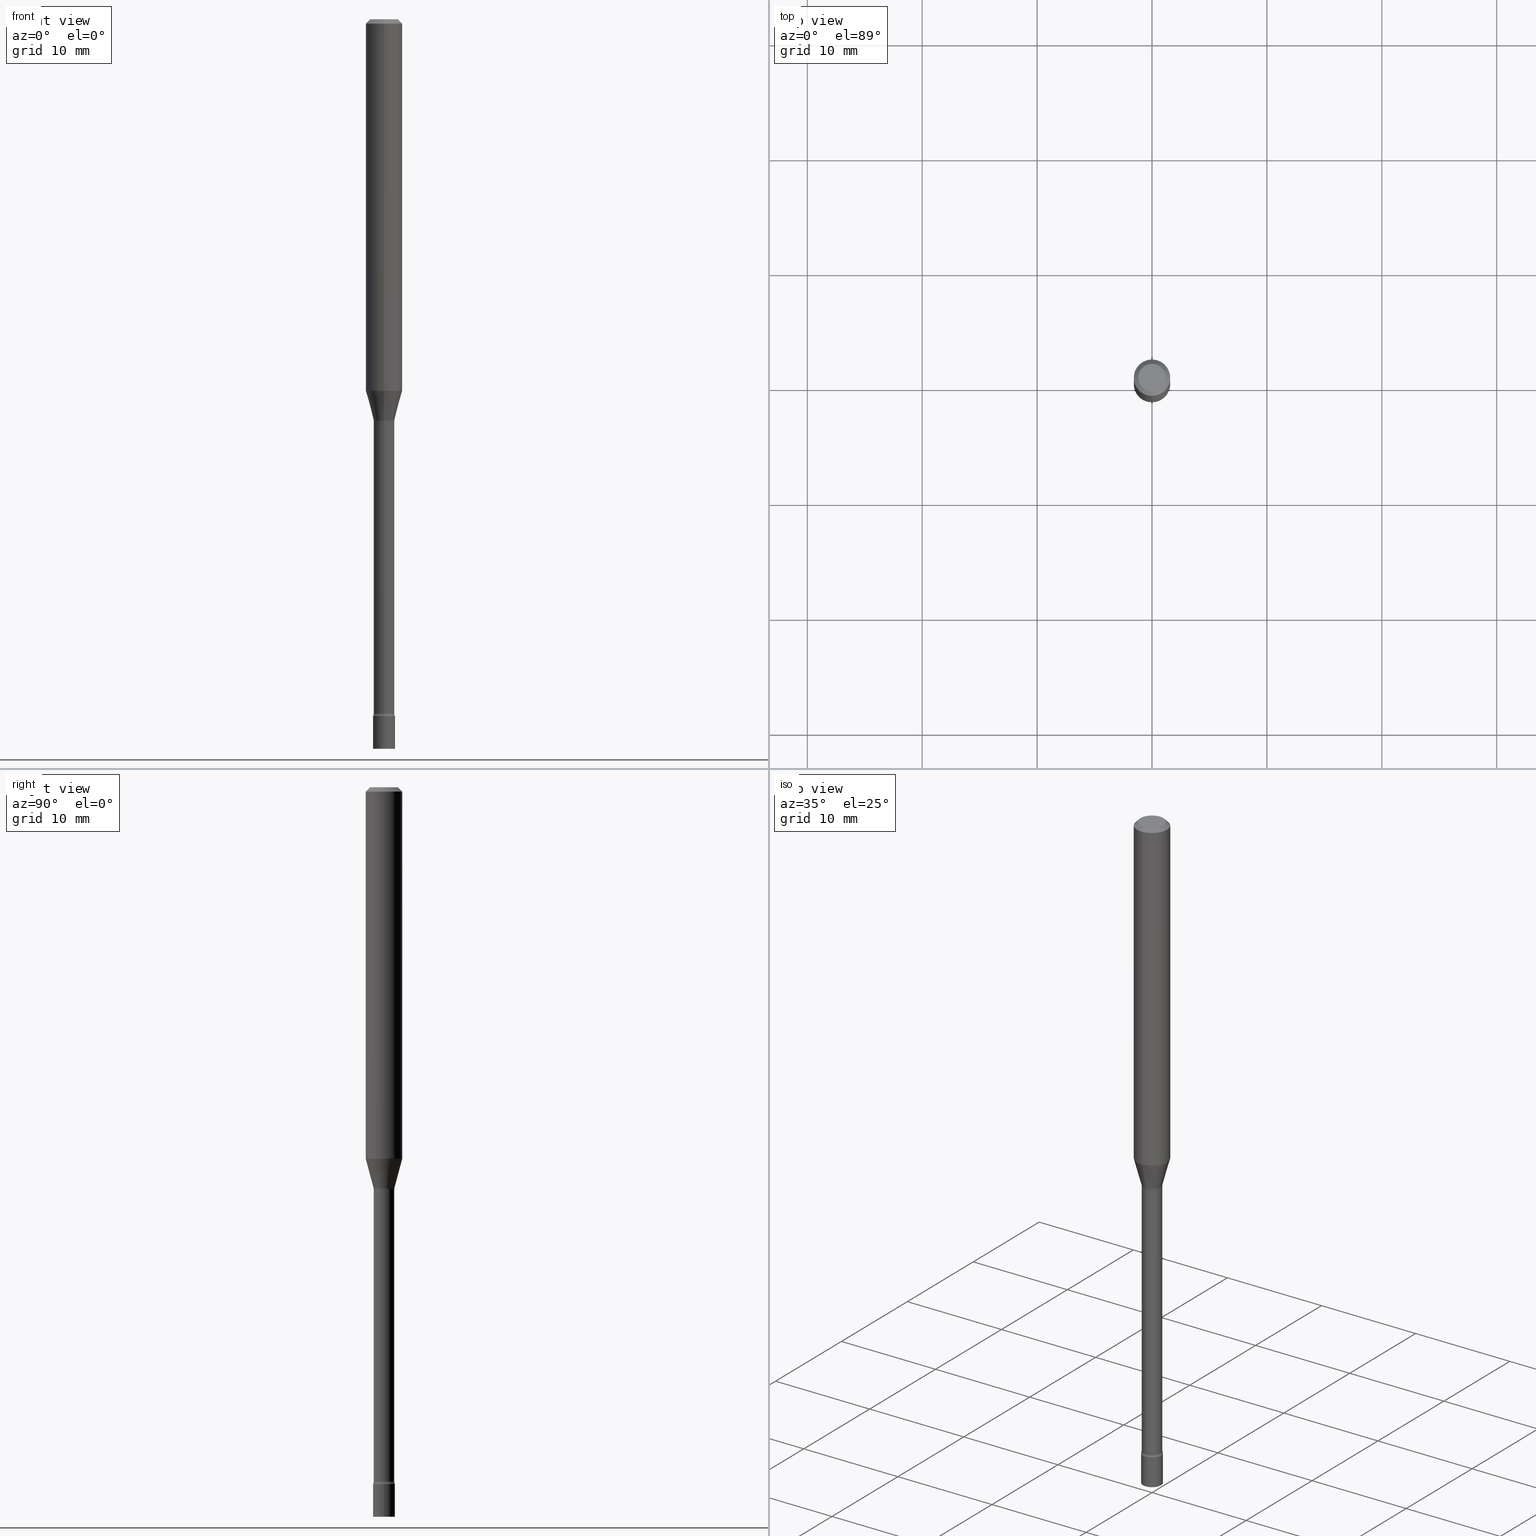
[diagram: canonical four-view strip — front | top / right | iso, engineering-drawing reading convention]
A machine part, canonical four-view strip (front | top / right | iso — engineering-drawing reading convention). The complete STEP part file that produces these views, byte-faithful:
ISO-10303-21;
HEADER;
FILE_DESCRIPTION (( 'STEP AP203' ),
    '1' );
FILE_NAME ('09708.STEP',
    '2024-03-09T01:05:26',
    ( '' ),
    ( '' ),
    'SwSTEP 2.0',
    'SolidWorks 2023',
    '' );
FILE_SCHEMA (( 'CONFIG_CONTROL_DESIGN' ));
ENDSEC;

DATA;
#1 = EDGE_CURVE ( 'NONE', #35, #479, #392, .T. ) ;
#2 = EDGE_LOOP ( 'NONE', ( #57, #248, #200, #14 ) ) ;
#3 = VECTOR ( 'NONE', #463, 39.37007874015748143 ) ;
#4 = EDGE_LOOP ( 'NONE', ( #221, #245, #53, #118 ) ) ;
#5 = DIMENSIONAL_EXPONENTS ( 1.000000000000000000, 0.000000000000000000, 0.000000000000000000, 0.000000000000000000, 0.000000000000000000, 0.000000000000000000, 0.000000000000000000 ) ;
#6 = ORIENTED_EDGE ( 'NONE', *, *, #7, .T. ) ;
#7 = EDGE_CURVE ( 'NONE', #479, #347, #62, .T. ) ;
#8 = ORIENTED_EDGE ( 'NONE', *, *, #487, .F. ) ;
#9 = CIRCLE ( 'NONE', #104, 0.04749999999999999362 ) ;
#10 = DIRECTION ( 'NONE',  ( -2.445422782025586364E-29, 3.491547248059153888E-15, 1.000000000000000000 ) ) ;
#11 = DIRECTION ( 'NONE',  ( -2.445468806185136597E-29, 3.491481338843145583E-15, 1.000000000000000000 ) ) ;
#12 = PERSON_AND_ORGANIZATION ( #262, #85 ) ;
#13 = CARTESIAN_POINT ( 'NONE',  ( 3.367348889646158194E-29, -4.807681774487402653E-15, -1.376974787463810967 ) ) ;
#14 = ORIENTED_EDGE ( 'NONE', *, *, #323, .F. ) ;
#15 = APPROVAL_STATUS ( 'not_yet_approved' ) ;
#16 = APPLICATION_PROTOCOL_DEFINITION ( 'international standard', 'config_control_design', 1994, #416 ) ;
#17 = ADVANCED_FACE ( 'NONE', ( #270 ), #124, .T. ) ;
#18 = AXIS2_PLACEMENT_3D ( 'NONE', #301, #66, #33 ) ;
#19 = LOCAL_TIME ( 20, 5, 26.00000000000000000, #217 ) ;
#20 = EDGE_LOOP ( 'NONE', ( #161, #372 ) ) ;
#21 = DIRECTION ( 'NONE',  ( -2.445422782025586364E-29, 3.491547248059153888E-15, 1.000000000000000000 ) ) ;
#22 = ORIENTED_EDGE ( 'NONE', *, *, #445, .T. ) ;
#23 = EDGE_CURVE ( 'NONE', #404, #40, #457, .T. ) ;
#24 = DIRECTION ( 'NONE',  ( -6.982962677686265922E-15, -1.000000000000000000, 3.491547248059153888E-15 ) ) ;
#25 = DIRECTION ( 'NONE',  ( 2.445422782025586364E-29, -3.491547248059153888E-15, -1.000000000000000000 ) ) ;
#26 = ORIENTED_EDGE ( 'NONE', *, *, #283, .T. ) ;
#27 = DIRECTION ( 'NONE',  ( -1.807323732225332111E-15, -0.2588190451025184635, 0.9659258262890689783 ) ) ;
#28 = CARTESIAN_POINT ( 'NONE',  ( 3.316907271900976096E-16, 0.04749999999999999362, -1.803038844028641024E-16 ) ) ;
#29 = AXIS2_PLACEMENT_3D ( 'NONE', #180, #471, #431 ) ;
#30 = AXIS2_PLACEMENT_3D ( 'NONE', #69, #232, #497 ) ;
#31 = DIRECTION ( 'NONE',  ( 6.982962677686265922E-15, 1.000000000000000000, -3.483106191921935554E-15 ) ) ;
#32 = EDGE_CURVE ( 'NONE', #272, #150, #383, .T. ) ;
#33 = DIRECTION ( 'NONE',  ( -6.982962677686265922E-15, -1.000000000000000000, 3.491547248059153888E-15 ) ) ;
#34 = DIRECTION ( 'NONE',  ( 4.937700262164548042E-15, 0.7071067811865451302, -0.7071067811865499042 ) ) ;
#35 = VERTEX_POINT ( 'NONE', #220 ) ;
#36 = CIRCLE ( 'NONE', #113, 0.03749999999999999861 ) ;
#37 = DIRECTION ( 'NONE',  ( -2.445422782025586364E-29, 3.491547248059153888E-15, 1.000000000000000000 ) ) ;
#38 = AXIS2_PLACEMENT_3D ( 'NONE', #28, #310, #491 ) ;
#39 =( NAMED_UNIT ( * ) SI_UNIT ( $, .STERADIAN. ) SOLID_ANGLE_UNIT ( ) );
#40 = VERTEX_POINT ( 'NONE', #190 ) ;
#41 = DIRECTION ( 'NONE',  ( -1.000000000000000000, 6.982962677686265922E-15, -4.883557194083112340E-29 ) ) ;
#42 = ADVANCED_FACE ( 'NONE', ( #309 ), #514, .T. ) ;
#43 = CC_DESIGN_PERSON_AND_ORGANIZATION_ASSIGNMENT ( #430, #419, ( #140 ) ) ;
#44 = ORIENTED_EDGE ( 'NONE', *, *, #268, .T. ) ;
#45 = AXIS2_PLACEMENT_3D ( 'NONE', #147, #318, #429 ) ;
#46 = VERTEX_POINT ( 'NONE', #263 ) ;
#47 = ADVANCED_FACE ( 'NONE', ( #226 ), #73, .F. ) ;
#48 = EDGE_LOOP ( 'NONE', ( #446, #237, #22, #241 ) ) ;
#49 = PERSON_AND_ORGANIZATION ( #262, #85 ) ;
#50 = VERTEX_POINT ( 'NONE', #504 ) ;
#51 = PLANE ( 'NONE',  #448 ) ;
#52 = FACE_OUTER_BOUND ( 'NONE', #337, .T. ) ;
#53 = ORIENTED_EDGE ( 'NONE', *, *, #334, .T. ) ;
#54 = DIRECTION ( 'NONE',  ( -2.445468806185136877E-29, 3.491481338843145188E-15, 1.000000000000000000 ) ) ;
#55 = DATE_AND_TIME ( #100, #139 ) ;
#56 = PLANE ( 'NONE',  #184 ) ;
#57 = ORIENTED_EDGE ( 'NONE', *, *, #225, .T. ) ;
#58 = DIRECTION ( 'NONE',  ( 7.105427357601001859E-15, 1.000000000000000000, 0.000000000000000000 ) ) ;
#59 = CALENDAR_DATE ( 2024, 8, 3 ) ;
#60 = VECTOR ( 'NONE', #117, 39.37007874015748143 ) ;
#61 = TOROIDAL_SURFACE ( 'NONE', #326, 0.05025000000000010014, 0.01499999999999993179 ) ;
#62 = LINE ( 'NONE', #64, #164 ) ;
#63 = CARTESIAN_POINT ( 'NONE',  ( 0.000000000000000000, 0.000000000000000000, 0.000000000000000000 ) ) ;
#64 = CARTESIAN_POINT ( 'NONE',  ( -2.497185146378538912E-16, -0.03576111260566877670, -1.373092501787273045 ) ) ;
#65 = CARTESIAN_POINT ( 'NONE',  ( -0.03749999999999999861, -8.264981125553189739E-15, -2.387000000000000011 ) ) ;
#66 = DIRECTION ( 'NONE',  ( -2.445422782025586084E-29, 3.491547248059153888E-15, 1.000000000000000000 ) ) ;
#67 = CARTESIAN_POINT ( 'NONE',  ( 4.440892098500625669E-16, 0.06250000000000000000, -2.182217030036971180E-16 ) ) ;
#68 = VERTEX_POINT ( 'NONE', #233 ) ;
#69 = CARTESIAN_POINT ( 'NONE',  ( 0.000000000000000000, 0.000000000000000000, 0.000000000000000000 ) ) ;
#70 = VECTOR ( 'NONE', #37, 39.37007874015748143 ) ;
#71 = CIRCLE ( 'NONE', #195, 0.03525000000000016315 ) ;
#72 = EDGE_CURVE ( 'NONE', #88, #502, #165, .T. ) ;
#73 = PLANE ( 'NONE',  #18 ) ;
#74 = PERSON_AND_ORGANIZATION ( #262, #85 ) ;
#75 = ORIENTED_EDGE ( 'NONE', *, *, #119, .T. ) ;
#76 = CYLINDRICAL_SURFACE ( 'NONE', #281, 0.06250000000000000000 ) ;
#77 = ORIENTED_EDGE ( 'NONE', *, *, #354, .T. ) ;
#78 = DIRECTION ( 'NONE',  ( 1.000000000000000000, -6.982962677686268288E-15, 0.000000000000000000 ) ) ;
#79 = APPROVAL_PERSON_ORGANIZATION ( #133, #178, #292 ) ;
#80 = ORIENTED_EDGE ( 'NONE', *, *, #286, .T. ) ;
#81 = ADVANCED_FACE ( 'NONE', ( #388 ), #314, .F. ) ;
#82 = VERTEX_POINT ( 'NONE', #187 ) ;
#83 = EDGE_LOOP ( 'NONE', ( #177, #441 ) ) ;
#84 = CIRCLE ( 'NONE', #95, 0.03749999999999999861 ) ;
#85 = ORGANIZATION ( 'UNSPECIFIED', 'UNSPECIFIED', '' ) ;
#86 = COORDINATED_UNIVERSAL_TIME_OFFSET ( 5, 0, .BEHIND. ) ;
#87 = DIRECTION ( 'NONE',  ( -6.982962677686265922E-15, -1.000000000000000000, 3.491547248059153493E-15 ) ) ;
#88 = VERTEX_POINT ( 'NONE', #342 ) ;
#89 = CYLINDRICAL_SURFACE ( 'NONE', #365, 0.03525000000000007988 ) ;
#90 = DATE_AND_TIME ( #59, #258 ) ;
#91 = DIRECTION ( 'NONE',  ( 1.000000000000000000, -6.982962677686268288E-15, 0.000000000000000000 ) ) ;
#92 = ORIENTED_EDGE ( 'NONE', *, *, #477, .T. ) ;
#93 = DATE_AND_TIME ( #449, #19 ) ;
#94 = ADVANCED_FACE ( 'NONE', ( #501 ), #428, .T. ) ;
#95 = AXIS2_PLACEMENT_3D ( 'NONE', #102, #509, #473 ) ;
#96 = FACE_OUTER_BOUND ( 'NONE', #304, .T. ) ;
#97 = ORIENTED_EDGE ( 'NONE', *, *, #32, .T. ) ;
#98 = DIRECTION ( 'NONE',  ( -6.982962677686266711E-15, -1.000000000000000000, 3.491547248059154677E-15 ) ) ;
#99 = UNCERTAINTY_MEASURE_WITH_UNIT (LENGTH_MEASURE( 1.000000000000000082E-05 ), #459, 'distance_accuracy_value', 'NONE');
#100 = CALENDAR_DATE ( 2024, 8, 3 ) ;
#101 = EDGE_CURVE ( 'NONE', #483, #156, #84, .T. ) ;
#102 = CARTESIAN_POINT ( 'NONE',  ( 5.837224180695074133E-29, -8.334323281117199318E-15, -2.387000000000000011 ) ) ;
#103 = CARTESIAN_POINT ( 'NONE',  ( -4.287811248607203282E-16, -0.06250000000000005551, -0.01499999999999981209 ) ) ;
#104 = AXIS2_PLACEMENT_3D ( 'NONE', #157, #266, #242 ) ;
#105 = CARTESIAN_POINT ( 'NONE',  ( 0.000000000000000000, 0.000000000000000000, 0.000000000000000000 ) ) ;
#106 = CARTESIAN_POINT ( 'NONE',  ( 3.357791685699105535E-29, -4.794217345946011972E-15, -1.373092501787273045 ) ) ;
#107 = ORIENTED_EDGE ( 'NONE', *, *, #186, .T. ) ;
#108 = DIRECTION ( 'NONE',  ( -2.445422782025586364E-29, 3.491547248059153888E-15, 1.000000000000000000 ) ) ;
#109 = DIRECTION ( 'NONE',  ( -6.982962677686265133E-15, -1.000000000000000000, 0.000000000000000000 ) ) ;
#110 =( NAMED_UNIT ( * ) PLANE_ANGLE_UNIT ( ) SI_UNIT ( $, .RADIAN. ) );
#111 = AXIS2_PLACEMENT_3D ( 'NONE', #278, #163, #166 ) ;
#112 = DIRECTION ( 'NONE',  ( -2.445422782025586364E-29, 3.491547248059153888E-15, 1.000000000000000000 ) ) ;
#113 = AXIS2_PLACEMENT_3D ( 'NONE', #207, #418, #91 ) ;
#114 = CC_DESIGN_PERSON_AND_ORGANIZATION_ASSIGNMENT ( #327, #126, ( #137 ) ) ;
#115 = DIRECTION ( 'NONE',  ( -6.982962677686265922E-15, -1.000000000000000000, 4.370956789862821150E-15 ) ) ;
#116 = ORIENTED_EDGE ( 'NONE', *, *, #119, .F. ) ;
#117 = DIRECTION ( 'NONE',  ( -4.851104656540964275E-15, -0.7071067811865500152, -0.7071067811865450192 ) ) ;
#118 = ORIENTED_EDGE ( 'NONE', *, *, #72, .T. ) ;
#119 = EDGE_CURVE ( 'NONE', #150, #272, #229, .T. ) ;
#120 = AXIS2_PLACEMENT_3D ( 'NONE', #13, #260, #215 ) ;
#121 = ORIENTED_EDGE ( 'NONE', *, *, #451, .F. ) ;
#122 = EDGE_LOOP ( 'NONE', ( #433, #398, #26, #192 ) ) ;
#123 = CC_DESIGN_PERSON_AND_ORGANIZATION_ASSIGNMENT ( #12, #362, ( #185 ) ) ;
#124 = CONICAL_SURFACE ( 'NONE', #247, 0.06250000000000000000, 0.7853981633974483900 ) ;
#125 = VECTOR ( 'NONE', #54, 39.37007874015748143 ) ;
#126 = PERSON_AND_ORGANIZATION_ROLE ( 'creator' ) ;
#127 = CARTESIAN_POINT ( 'NONE',  ( 2.504663143554939137E-16, 0.03524999999999518796, -1.376974787463810967 ) ) ;
#128 = CARTESIAN_POINT ( 'NONE',  ( 2.664535259100955411E-16, 0.03749999999999161643, -2.387000000000000011 ) ) ;
#129 = PERSON_AND_ORGANIZATION_ROLE ( 'creator' ) ;
#130 = DIRECTION ( 'NONE',  ( -2.445422782025586364E-29, 3.491547248059153888E-15, 1.000000000000000000 ) ) ;
#131 = ADVANCED_FACE ( 'NONE', ( #455 ), #373, .T. ) ;
#132 = DIRECTION ( 'NONE',  ( -2.445422782025586364E-29, 3.491547248059153888E-15, 1.000000000000000000 ) ) ;
#133 = PERSON_AND_ORGANIZATION ( #262, #85 ) ;
#134 = CARTESIAN_POINT ( 'NONE',  ( 5.837334040363921048E-29, -8.334165955818587781E-15, -2.387000000000000011 ) ) ;
#135 = EDGE_CURVE ( 'NONE', #479, #35, #194, .T. ) ;
#136 = DIRECTION ( 'NONE',  ( -6.982962677686265922E-15, -1.000000000000000000, 0.000000000000000000 ) ) ;
#137 = PRODUCT_DEFINITION ( 'UNKNOWN', '', #167, #189 ) ;
#138 = CIRCLE ( 'NONE', #148, 0.06250000000000000000 ) ;
#139 = LOCAL_TIME ( 20, 5, 26.00000000000000000, #460 ) ;
#140 = PRODUCT ( '09708', '09708', '', ( #474 ) ) ;
#141 = ORIENTED_EDGE ( 'NONE', *, *, #283, .F. ) ;
#142 = PERSON_AND_ORGANIZATION ( #262, #85 ) ;
#143 = EDGE_CURVE ( 'NONE', #156, #483, #201, .T. ) ;
#144 = ADVANCED_BREP_SHAPE_REPRESENTATION ( '09708', ( #235, #224, #282 ), #240 ) ;
#145 = FACE_OUTER_BOUND ( 'NONE', #122, .T. ) ;
#146 = CARTESIAN_POINT ( 'NONE',  ( 3.367348889646158194E-29, -4.807681774487402653E-15, -1.376974787463810967 ) ) ;
#147 = CARTESIAN_POINT ( 'NONE',  ( 3.113760778918395764E-29, -4.445792751526472974E-15, -1.273301615493748429 ) ) ;
#148 = AXIS2_PLACEMENT_3D ( 'NONE', #352, #377, #478 ) ;
#149 = ORIENTED_EDGE ( 'NONE', *, *, #143, .T. ) ;
#150 = VERTEX_POINT ( 'NONE', #127 ) ;
#151 = DIRECTION ( 'NONE',  ( -2.445422782025586364E-29, 3.491547248059153888E-15, 1.000000000000000000 ) ) ;
#152 = CARTESIAN_POINT ( 'NONE',  ( -4.364351673553912750E-16, -0.06250000000000005551, -0.01499999999999981209 ) ) ;
#153 = EDGE_LOOP ( 'NONE', ( #317, #345, #378, #468 ) ) ;
#154 = AXIS2_PLACEMENT_3D ( 'NONE', #490, #450, #87 ) ;
#155 = CARTESIAN_POINT ( 'NONE',  ( -4.364351673553916201E-16, -0.06250000000000000000, 2.182217030036971180E-16 ) ) ;
#156 = VERTEX_POINT ( 'NONE', #499 ) ;
#157 = CARTESIAN_POINT ( 'NONE',  ( 7.069908064529673966E-46, -1.009433551865941709E-31, -2.891078024010860666E-17 ) ) ;
#158 = ADVANCED_FACE ( 'NONE', ( #287 ), #415, .T. ) ;
#159 = ORIENTED_EDGE ( 'NONE', *, *, #268, .F. ) ;
#160 = CIRCLE ( 'NONE', #325, 0.03525000000000016315 ) ;
#161 = ORIENTED_EDGE ( 'NONE', *, *, #23, .F. ) ;
#162 = EDGE_CURVE ( 'NONE', #82, #364, #36, .T. ) ;
#163 = DIRECTION ( 'NONE',  ( -2.445422782025586364E-29, 3.491547248059153888E-15, 1.000000000000000000 ) ) ;
#164 = VECTOR ( 'NONE', #27, 39.37007874015748854 ) ;
#165 = CIRCLE ( 'NONE', #29, 0.06250000000000000000 ) ;
#166 = DIRECTION ( 'NONE',  ( -6.982962677686266711E-15, -1.000000000000000000, 0.000000000000000000 ) ) ;
#167 = PRODUCT_DEFINITION_FORMATION_WITH_SPECIFIED_SOURCE ( 'ANY', '', #140, .NOT_KNOWN. ) ;
#168 = CARTESIAN_POINT ( 'NONE',  ( 5.817901084912006179E-29, -8.306733981466744129E-15, -2.379098259685360706 ) ) ;
#169 = ORIENTED_EDGE ( 'NONE', *, *, #354, .F. ) ;
#170 = PLANE ( 'NONE',  #38 ) ;
#171 = COORDINATED_UNIVERSAL_TIME_OFFSET ( 5, 0, .BEHIND. ) ;
#172 = CARTESIAN_POINT ( 'NONE',  ( 3.570477247195091841E-16, 0.05024999999999179429, -2.379098259685361150 ) ) ;
#173 = APPLICATION_CONTEXT ( 'configuration controlled 3d designs of mechanical parts and assemblies' ) ;
#174 = APPROVAL_DATE_TIME ( #55, #178 ) ;
#175 = DIRECTION ( 'NONE',  ( -2.445422782025586364E-29, 3.491547248059153888E-15, 1.000000000000000000 ) ) ;
#176 = AXIS2_PLACEMENT_3D ( 'NONE', #386, #112, #109 ) ;
#177 = ORIENTED_EDGE ( 'NONE', *, *, #319, .T. ) ;
#178 = APPROVAL ( #15, 'UNSPECIFIED' ) ;
#179 = CARTESIAN_POINT ( 'NONE',  ( -2.461494343884414202E-16, -0.03525000000000007988, 1.230770404940854370E-16 ) ) ;
#180 = CARTESIAN_POINT ( 'NONE',  ( 3.668134173038386448E-31, -5.237320872088741752E-17, -0.01500000000000003067 ) ) ;
#181 = CARTESIAN_POINT ( 'NONE',  ( -3.508938745537011646E-16, -0.05025000000000480471, -1.376974787463810745 ) ) ;
#182 = DIRECTION ( 'NONE',  ( -2.445468806185136597E-29, 3.491481338843145583E-15, 1.000000000000000000 ) ) ;
#183 = CARTESIAN_POINT ( 'NONE',  ( 0.000000000000000000, 0.000000000000000000, 0.000000000000000000 ) ) ;
#184 = AXIS2_PLACEMENT_3D ( 'NONE', #134, #456, #211 ) ;
#185 = SECURITY_CLASSIFICATION ( '', '', #332 ) ;
#186 = EDGE_CURVE ( 'NONE', #68, #483, #447, .T. ) ;
#187 = CARTESIAN_POINT ( 'NONE',  ( 0.03749999999999999861, -8.596027056231822783E-15, -2.387000000000000011 ) ) ;
#188 = CARTESIAN_POINT ( 'NONE',  ( 5.817901084912006179E-29, -8.306733981466744129E-15, -2.379098259685360706 ) ) ;
#189 = DESIGN_CONTEXT ( 'detailed design', #416, 'design' ) ;
#190 = CARTESIAN_POINT ( 'NONE',  ( -0.03749999999999999861, -8.264981125553189739E-15, -2.500000000000000000 ) ) ;
#191 = DIRECTION ( 'NONE',  ( -6.982962677686265922E-15, -1.000000000000000000, 3.491547248059153493E-15 ) ) ;
#192 = ORIENTED_EDGE ( 'NONE', *, *, #334, .F. ) ;
#193 = FACE_OUTER_BOUND ( 'NONE', #340, .T. ) ;
#194 = CIRCLE ( 'NONE', #484, 0.03576111260566398192 ) ;
#195 = AXIS2_PLACEMENT_3D ( 'NONE', #188, #108, #136 ) ;
#196 = ORIENTED_EDGE ( 'NONE', *, *, #225, .F. ) ;
#197 = DIRECTION ( 'NONE',  ( -6.982962677686262766E-15, -1.000000000000000000, 0.000000000000000000 ) ) ;
#198 = EDGE_LOOP ( 'NONE', ( #322, #308, #403, #116 ) ) ;
#199 = PRODUCT_RELATED_PRODUCT_CATEGORY ( 'detail', '', ( #140 ) ) ;
#200 = ORIENTED_EDGE ( 'NONE', *, *, #32, .F. ) ;
#201 = CIRCLE ( 'NONE', #264, 0.03749999999999999861 ) ;
#202 = DIRECTION ( 'NONE',  ( -6.982962677686265133E-15, -1.000000000000000000, 0.000000000000000000 ) ) ;
#203 = ORIENTED_EDGE ( 'NONE', *, *, #358, .T. ) ;
#204 = EDGE_LOOP ( 'NONE', ( #357, #407 ) ) ;
#205 = PERSON_AND_ORGANIZATION_ROLE ( 'design_supplier' ) ;
#206 = EDGE_CURVE ( 'NONE', #68, #150, #255, .T. ) ;
#207 = CARTESIAN_POINT ( 'NONE',  ( 5.837334040363921048E-29, -8.334165955818587781E-15, -2.387000000000000011 ) ) ;
#208 = CARTESIAN_POINT ( 'NONE',  ( 5.818010580909896011E-29, -8.306577176965640897E-15, -2.379098259685360706 ) ) ;
#209 = CC_DESIGN_APPROVAL ( #520, ( #137 ) ) ;
#210 = COORDINATED_UNIVERSAL_TIME_OFFSET ( 5, 0, .BEHIND. ) ;
#211 = DIRECTION ( 'NONE',  ( 1.000000000000000000, -6.982962677686265922E-15, 4.876176775795935793E-29 ) ) ;
#212 = EDGE_LOOP ( 'NONE', ( #203, #496, #141, #284 ) ) ;
#213 = LINE ( 'NONE', #67, #486 ) ;
#214 = APPROVAL_DATE_TIME ( #462, #467 ) ;
#215 = DIRECTION ( 'NONE',  ( -6.982962677686265922E-15, -1.000000000000000000, 3.491547248059153888E-15 ) ) ;
#216 = LENGTH_MEASURE_WITH_UNIT ( LENGTH_MEASURE( 0.02539999999999999897 ), #454 );
#217 = COORDINATED_UNIVERSAL_TIME_OFFSET ( 5, 0, .BEHIND. ) ;
#218 = AXIS2_PLACEMENT_3D ( 'NONE', #172, #251, #406 ) ;
#219 = LOCAL_TIME ( 20, 5, 26.00000000000000000, #171 ) ;
#220 = CARTESIAN_POINT ( 'NONE',  ( 3.490935988483311781E-16, 0.03576111260565918715, -1.373092501787273045 ) ) ;
#221 = ORIENTED_EDGE ( 'NONE', *, *, #275, .F. ) ;
#222 = LINE ( 'NONE', #470, #355 ) ;
#223 = DIRECTION ( 'NONE',  ( 1.000000000000000000, -6.982962677686266711E-15, 4.876176775795935793E-29 ) ) ;
#224 = MANIFOLD_SOLID_BREP ( 'Body-Move/Copy2[2]', #382 ) ;
#225 = EDGE_CURVE ( 'NONE', #313, #68, #160, .T. ) ;
#226 = FACE_OUTER_BOUND ( 'NONE', #204, .T. ) ;
#227 = FACE_OUTER_BOUND ( 'NONE', #20, .T. ) ;
#228 = AXIS2_PLACEMENT_3D ( 'NONE', #376, #475, #380 ) ;
#229 = CIRCLE ( 'NONE', #331, 0.03524999999999999661 ) ;
#230 = APPROVAL_PERSON_ORGANIZATION ( #142, #467, #250 ) ;
#231 = CARTESIAN_POINT ( 'NONE',  ( 3.668134173038386448E-31, -5.237320872088741752E-17, -0.01500000000000003067 ) ) ;
#232 = DIRECTION ( 'NONE',  ( -2.445468806185136597E-29, 3.491481338843145583E-15, 1.000000000000000000 ) ) ;
#233 = CARTESIAN_POINT ( 'NONE',  ( 2.584599201327950479E-16, 0.03524999999999185729, -2.379098259685360706 ) ) ;
#234 = ADVANCED_FACE ( 'NONE', ( #52 ), #56, .T. ) ;
#235 = MANIFOLD_SOLID_BREP ( 'Body-Move/Copy2[1]', #422 ) ;
#236 = DIRECTION ( 'NONE',  ( 6.982962677686265922E-15, 1.000000000000000000, -3.483106191921935554E-15 ) ) ;
#237 = ORIENTED_EDGE ( 'NONE', *, *, #498, .T. ) ;
#238 = FACE_OUTER_BOUND ( 'NONE', #212, .T. ) ;
#239 = VECTOR ( 'NONE', #10, 39.37007874015748143 ) ;
#240 =( GEOMETRIC_REPRESENTATION_CONTEXT ( 3 ) GLOBAL_UNCERTAINTY_ASSIGNED_CONTEXT ( ( #99 ) ) GLOBAL_UNIT_ASSIGNED_CONTEXT ( ( #459, #110, #39 ) ) REPRESENTATION_CONTEXT ( 'NONE', 'WORKASPACE' ) );
#241 = ORIENTED_EDGE ( 'NONE', *, *, #375, .F. ) ;
#242 = DIRECTION ( 'NONE',  ( -6.982962677686266711E-15, -1.000000000000000000, 3.491547248059154677E-15 ) ) ;
#243 = ORIENTED_EDGE ( 'NONE', *, *, #72, .F. ) ;
#244 = ADVANCED_FACE ( 'NONE', ( #96 ), #305, .F. ) ;
#245 = ORIENTED_EDGE ( 'NONE', *, *, #319, .F. ) ;
#246 = EDGE_CURVE ( 'NONE', #40, #364, #367, .T. ) ;
#247 = AXIS2_PLACEMENT_3D ( 'NONE', #231, #25, #31 ) ;
#248 = ORIENTED_EDGE ( 'NONE', *, *, #206, .T. ) ;
#249 = AXIS2_PLACEMENT_3D ( 'NONE', #480, #442, #78 ) ;
#250 = APPROVAL_ROLE ( '' ) ;
#251 = DIRECTION ( 'NONE',  ( 1.000000000000000000, -7.105427357601001070E-15, 4.926316315697186442E-29 ) ) ;
#252 = ORIENTED_EDGE ( 'NONE', *, *, #358, .F. ) ;
#253 = CARTESIAN_POINT ( 'NONE',  ( 7.069908064529673966E-46, -1.009433551865941709E-31, -2.891078024010860666E-17 ) ) ;
#254 = APPROVAL_DATE_TIME ( #93, #520 ) ;
#255 = LINE ( 'NONE', #493, #239 ) ;
#256 = VECTOR ( 'NONE', #391, 39.37007874015748143 ) ;
#257 = CARTESIAN_POINT ( 'NONE',  ( 0.000000000000000000, 0.000000000000000000, 0.000000000000000000 ) ) ;
#258 = LOCAL_TIME ( 20, 5, 26.00000000000000000, #210 ) ;
#259 = CALENDAR_DATE ( 2024, 8, 3 ) ;
#260 = DIRECTION ( 'NONE',  ( -2.445422782025586364E-29, 3.491547248059153888E-15, 1.000000000000000000 ) ) ;
#261 = CARTESIAN_POINT ( 'NONE',  ( 5.818010580909896011E-29, -8.306577176965640897E-15, -2.379098259685360706 ) ) ;
#262 = PERSON ( 'UNSPECIFIED', 'UNSPECIFIED', 'UNSPECIFIED', ('UNSPECIFIED'), ('UNSPECIFIED'), ('UNSPECIFIED') ) ;
#263 = CARTESIAN_POINT ( 'NONE',  ( 4.440892098500933817E-16, 0.06249999999999551747, -1.273301615493748873 ) ) ;
#264 = AXIS2_PLACEMENT_3D ( 'NONE', #296, #290, #485 ) ;
#265 = AXIS2_PLACEMENT_3D ( 'NONE', #381, #11, #294 ) ;
#266 = DIRECTION ( 'NONE',  ( -2.445422782025586364E-29, 3.491547248059153888E-15, 1.000000000000000000 ) ) ;
#267 = CARTESIAN_POINT ( 'NONE',  ( 6.113672015462842613E-29, -8.728703347107864943E-15, -2.500000000000000000 ) ) ;
#268 = EDGE_CURVE ( 'NONE', #313, #156, #399, .T. ) ;
#269 = DIRECTION ( 'NONE',  ( -6.982962677686266711E-15, -1.000000000000000000, 0.000000000000000000 ) ) ;
#270 = FACE_OUTER_BOUND ( 'NONE', #4, .T. ) ;
#271 = CARTESIAN_POINT ( 'NONE',  ( -2.497185146378538912E-16, -0.03576111260566877670, -1.373092501787273045 ) ) ;
#272 = VERTEX_POINT ( 'NONE', #316 ) ;
#273 = CARTESIAN_POINT ( 'NONE',  ( 3.367285515538842797E-29, -4.807772529816107808E-15, -1.376974787463810967 ) ) ;
#274 = DIRECTION ( 'NONE',  ( 1.839019923739602287E-15, 0.2588190451025252359, 0.9659258262890670910 ) ) ;
#275 = EDGE_CURVE ( 'NONE', #285, #502, #302, .T. ) ;
#276 = CARTESIAN_POINT ( 'NONE',  ( 0.000000000000000000, 0.000000000000000000, 0.000000000000000000 ) ) ;
#277 = LINE ( 'NONE', #179, #70 ) ;
#278 = CARTESIAN_POINT ( 'NONE',  ( 3.357791685699105535E-29, -4.794217345946011972E-15, -1.373092501787273045 ) ) ;
#279 = ORIENTED_EDGE ( 'NONE', *, *, #1, .T. ) ;
#280 = DIRECTION ( 'NONE',  ( 2.445422782025586364E-29, -3.491547248059153888E-15, -1.000000000000000000 ) ) ;
#281 = AXIS2_PLACEMENT_3D ( 'NONE', #63, #21, #24 ) ;
#282 = AXIS2_PLACEMENT_3D ( 'NONE', #183, #512, #506 ) ;
#283 = EDGE_CURVE ( 'NONE', #502, #88, #138, .T. ) ;
#284 = ORIENTED_EDGE ( 'NONE', *, *, #368, .F. ) ;
#285 = VERTEX_POINT ( 'NONE', #389 ) ;
#286 = EDGE_CURVE ( 'NONE', #46, #347, #495, .T. ) ;
#287 = FACE_OUTER_BOUND ( 'NONE', #198, .T. ) ;
#288 = ORIENTED_EDGE ( 'NONE', *, *, #1, .F. ) ;
#289 = CARTESIAN_POINT ( 'NONE',  ( 2.618611004132960891E-16, 0.03749999999999126948, -2.500000000000000000 ) ) ;
#290 = DIRECTION ( 'NONE',  ( -2.445422782025586364E-29, 3.491547248059153888E-15, 1.000000000000000000 ) ) ;
#291 = FACE_OUTER_BOUND ( 'NONE', #2, .T. ) ;
#292 = APPROVAL_ROLE ( '' ) ;
#293 = CONICAL_SURFACE ( 'NONE', #393, 0.06250000000000000000, 0.7853981633974483900 ) ;
#294 = DIRECTION ( 'NONE',  ( 1.000000000000000000, -6.982962677686268288E-15, 0.000000000000000000 ) ) ;
#295 = CIRCLE ( 'NONE', #356, 0.01500000000000001853 ) ;
#296 = CARTESIAN_POINT ( 'NONE',  ( 5.837224180695074133E-29, -8.334323281117199318E-15, -2.387000000000000011 ) ) ;
#297 = CARTESIAN_POINT ( 'NONE',  ( 0.03749999999999999861, -8.990564447521099944E-15, -2.500000000000000000 ) ) ;
#298 = APPROVAL_ROLE ( '' ) ;
#299 = CARTESIAN_POINT ( 'NONE',  ( -0.03749999999999999861, 2.664535259100375598E-16, -1.844600658845589458E-30 ) ) ;
#300 = CC_DESIGN_PERSON_AND_ORGANIZATION_ASSIGNMENT ( #49, #205, ( #167 ) ) ;
#301 = CARTESIAN_POINT ( 'NONE',  ( 2.618611004132933280E-16, 0.03749999999999166500, -2.387000000000000011 ) ) ;
#302 = LINE ( 'NONE', #103, #60 ) ;
#303 = ADVANCED_FACE ( 'NONE', ( #145 ), #293, .T. ) ;
#304 = EDGE_LOOP ( 'NONE', ( #481, #466, #77, #97 ) ) ;
#305 = TOROIDAL_SURFACE ( 'NONE', #120, 0.05024999999999999606, 0.01500000000000002373 ) ;
#306 = CARTESIAN_POINT ( 'NONE',  ( -3.508938745536774002E-16, -0.05025000000000840600, -2.379098259685360706 ) ) ;
#307 = ORIENTED_EDGE ( 'NONE', *, *, #286, .F. ) ;
#308 = ORIENTED_EDGE ( 'NONE', *, *, #461, .T. ) ;
#309 = FACE_OUTER_BOUND ( 'NONE', #361, .T. ) ;
#310 = DIRECTION ( 'NONE',  ( 2.445422782025586084E-29, -3.491547248059153888E-15, -1.000000000000000000 ) ) ;
#311 = APPLICATION_PROTOCOL_DEFINITION ( 'international standard', 'config_control_design', 1994, #173 ) ;
#312 = ORIENTED_EDGE ( 'NONE', *, *, #101, .T. ) ;
#313 = VERTEX_POINT ( 'NONE', #519 ) ;
#314 = TOROIDAL_SURFACE ( 'NONE', #400, 0.05024999999999999606, 0.01500000000000002373 ) ;
#315 = CC_DESIGN_APPROVAL ( #178, ( #185 ) ) ;
#316 = CARTESIAN_POINT ( 'NONE',  ( -2.461494343884071541E-16, -0.03525000000000479833, -1.376974787463810967 ) ) ;
#317 = ORIENTED_EDGE ( 'NONE', *, *, #23, .T. ) ;
#318 = DIRECTION ( 'NONE',  ( -2.445422782025586364E-29, 3.491547248059153888E-15, 1.000000000000000000 ) ) ;
#319 = EDGE_CURVE ( 'NONE', #50, #285, #9, .T. ) ;
#320 = AXIS2_PLACEMENT_3D ( 'NONE', #276, #423, #339 ) ;
#321 = CC_DESIGN_APPROVAL ( #467, ( #167 ) ) ;
#322 = ORIENTED_EDGE ( 'NONE', *, *, #206, .F. ) ;
#323 = EDGE_CURVE ( 'NONE', #313, #272, #277, .T. ) ;
#324 = ORIENTED_EDGE ( 'NONE', *, *, #368, .T. ) ;
#325 = AXIS2_PLACEMENT_3D ( 'NONE', #168, #328, #410 ) ;
#326 = AXIS2_PLACEMENT_3D ( 'NONE', #208, #387, #472 ) ;
#327 = PERSON_AND_ORGANIZATION ( #262, #85 ) ;
#328 = DIRECTION ( 'NONE',  ( -2.445422782025586364E-29, 3.491547248059153888E-15, 1.000000000000000000 ) ) ;
#329 = DIRECTION ( 'NONE',  ( 2.438088387897960049E-29, -3.491481338843145188E-15, -1.000000000000000000 ) ) ;
#330 = SHAPE_DEFINITION_REPRESENTATION ( #426, #144 ) ;
#331 = AXIS2_PLACEMENT_3D ( 'NONE', #273, #435, #202 ) ;
#332 = SECURITY_CLASSIFICATION_LEVEL ( 'unclassified' ) ;
#333 = DIRECTION ( 'NONE',  ( -6.982962677686266711E-15, -1.000000000000000000, 0.000000000000000000 ) ) ;
#334 = EDGE_CURVE ( 'NONE', #50, #88, #222, .T. ) ;
#335 = CYLINDRICAL_SURFACE ( 'NONE', #30, 0.03749999999999999861 ) ;
#336 = DIRECTION ( 'NONE',  ( 1.000000000000000000, -6.982962677686268288E-15, 0.000000000000000000 ) ) ;
#337 = EDGE_LOOP ( 'NONE', ( #518, #379 ) ) ;
#338 = DIRECTION ( 'NONE',  ( -6.982962677686267499E-15, -1.000000000000000000, 0.000000000000000000 ) ) ;
#339 = DIRECTION ( 'NONE',  ( -6.982962677686265922E-15, -1.000000000000000000, 3.491547248059153888E-15 ) ) ;
#340 = EDGE_LOOP ( 'NONE', ( #395, #507, #252, #351 ) ) ;
#341 = AXIS2_PLACEMENT_3D ( 'NONE', #181, #41, #338 ) ;
#342 = CARTESIAN_POINT ( 'NONE',  ( 4.440892098500938748E-16, 0.06249999999999995143, -0.01500000000000024751 ) ) ;
#343 = DIRECTION ( 'NONE',  ( -6.982962677686265922E-15, -1.000000000000000000, 3.491547248059153888E-15 ) ) ;
#344 = EDGE_LOOP ( 'NONE', ( #288, #92, #75, #169 ) ) ;
#345 = ORIENTED_EDGE ( 'NONE', *, *, #246, .T. ) ;
#346 = ADVANCED_FACE ( 'NONE', ( #193 ), #443, .T. ) ;
#347 = VERTEX_POINT ( 'NONE', #440 ) ;
#348 = DIRECTION ( 'NONE',  ( -2.445422782025586364E-29, 3.491547248059153888E-15, 1.000000000000000000 ) ) ;
#349 = AXIS2_PLACEMENT_3D ( 'NONE', #500, #465, #115 ) ;
#350 = CIRCLE ( 'NONE', #508, 0.04749999999999999362 ) ;
#351 = ORIENTED_EDGE ( 'NONE', *, *, #7, .F. ) ;
#352 = CARTESIAN_POINT ( 'NONE',  ( 3.668134173038386448E-31, -5.237320872088741752E-17, -0.01500000000000003067 ) ) ;
#353 = ADVANCED_FACE ( 'NONE', ( #238 ), #76, .T. ) ;
#354 = EDGE_CURVE ( 'NONE', #479, #272, #505, .T. ) ;
#355 = VECTOR ( 'NONE', #34, 39.37007874015748143 ) ;
#356 = AXIS2_PLACEMENT_3D ( 'NONE', #408, #417, #58 ) ;
#357 = ORIENTED_EDGE ( 'NONE', *, *, #143, .F. ) ;
#358 = EDGE_CURVE ( 'NONE', #347, #46, #437, .T. ) ;
#359 = CARTESIAN_POINT ( 'NONE',  ( 3.357791685699105535E-29, -4.794217345946011972E-15, -1.373092501787273045 ) ) ;
#360 = CC_DESIGN_DATE_AND_TIME_ASSIGNMENT ( #409, #492, ( #185 ) ) ;
#361 = EDGE_LOOP ( 'NONE', ( #8, #80, #324, #243 ) ) ;
#362 = PERSON_AND_ORGANIZATION_ROLE ( 'classification_officer' ) ;
#363 = AXIS2_PLACEMENT_3D ( 'NONE', #267, #182, #336 ) ;
#364 = VERTEX_POINT ( 'NONE', #65 ) ;
#365 = AXIS2_PLACEMENT_3D ( 'NONE', #257, #175, #191 ) ;
#366 = DIRECTION ( 'NONE',  ( -1.000000000000000000, 6.982962677686265922E-15, -4.876176775795935793E-29 ) ) ;
#367 = LINE ( 'NONE', #299, #3 ) ;
#368 = EDGE_CURVE ( 'NONE', #347, #502, #516, .T. ) ;
#369 = FACE_OUTER_BOUND ( 'NONE', #83, .T. ) ;
#370 = CC_DESIGN_DATE_AND_TIME_ASSIGNMENT ( #90, #421, ( #137 ) ) ;
#371 = CARTESIAN_POINT ( 'NONE',  ( 0.03749999999999999861, -2.618611004132350016E-16, 1.828566290923475922E-30 ) ) ;
#372 = ORIENTED_EDGE ( 'NONE', *, *, #498, .F. ) ;
#373 = CONICAL_SURFACE ( 'NONE', #111, 0.03576111260566398192, 0.2617993877991505736 ) ;
#374 = TOROIDAL_SURFACE ( 'NONE', #517, 0.05025000000000010014, 0.01499999999999993179 ) ;
#375 = EDGE_CURVE ( 'NONE', #364, #82, #458, .T. ) ;
#376 = CARTESIAN_POINT ( 'NONE',  ( 3.357791685699105535E-29, -4.794217345946011972E-15, -1.373092501787273045 ) ) ;
#377 = DIRECTION ( 'NONE',  ( -2.445422782025586364E-29, 3.491547248059153888E-15, 1.000000000000000000 ) ) ;
#378 = ORIENTED_EDGE ( 'NONE', *, *, #162, .F. ) ;
#379 = ORIENTED_EDGE ( 'NONE', *, *, #375, .T. ) ;
#380 = DIRECTION ( 'NONE',  ( -6.982962677686266711E-15, -1.000000000000000000, 0.000000000000000000 ) ) ;
#381 = CARTESIAN_POINT ( 'NONE',  ( 6.113672015462842613E-29, -8.728703347107864943E-15, -2.500000000000000000 ) ) ;
#382 = CLOSED_SHELL ( 'NONE', ( #81, #439, #420, #303, #353, #346, #131, #42, #17, #511, #47, #414, #158, #244 ) ) ;
#383 = CIRCLE ( 'NONE', #176, 0.03524999999999999661 ) ;
#384 = LOCAL_TIME ( 20, 5, 26.00000000000000000, #86 ) ;
#385 = ADVANCED_FACE ( 'NONE', ( #396 ), #335, .T. ) ;
#386 = CARTESIAN_POINT ( 'NONE',  ( 3.367285515538842797E-29, -4.807772529816107808E-15, -1.376974787463810967 ) ) ;
#387 = DIRECTION ( 'NONE',  ( -2.445422782025586364E-29, 3.491547248059153888E-15, 1.000000000000000000 ) ) ;
#388 = FACE_OUTER_BOUND ( 'NONE', #344, .T. ) ;
#389 = CARTESIAN_POINT ( 'NONE',  ( -3.773273898774340269E-16, -0.04749999999999999362, 1.369377140427011986E-16 ) ) ;
#390 = ORIENTED_EDGE ( 'NONE', *, *, #186, .F. ) ;
#391 = DIRECTION ( 'NONE',  ( -2.445422782025586364E-29, 3.491547248059153888E-15, 1.000000000000000000 ) ) ;
#392 = CIRCLE ( 'NONE', #228, 0.03576111260566398192 ) ;
#393 = AXIS2_PLACEMENT_3D ( 'NONE', #503, #280, #236 ) ;
#394 = APPROVAL_PERSON_ORGANIZATION ( #74, #520, #298 ) ;
#395 = ORIENTED_EDGE ( 'NONE', *, *, #135, .T. ) ;
#396 = FACE_OUTER_BOUND ( 'NONE', #153, .T. ) ;
#397 = EDGE_LOOP ( 'NONE', ( #390, #196, #44, #149 ) ) ;
#398 = ORIENTED_EDGE ( 'NONE', *, *, #275, .T. ) ;
#399 = CIRCLE ( 'NONE', #411, 0.01499999999999993353 ) ;
#400 = AXIS2_PLACEMENT_3D ( 'NONE', #146, #151, #515 ) ;
#401 = VECTOR ( 'NONE', #274, 39.37007874015748143 ) ;
#402 = ADVANCED_FACE ( 'NONE', ( #227 ), #51, .T. ) ;
#403 = ORIENTED_EDGE ( 'NONE', *, *, #323, .T. ) ;
#404 = VERTEX_POINT ( 'NONE', #297 ) ;
#405 = PERSON_AND_ORGANIZATION ( #262, #85 ) ;
#406 = DIRECTION ( 'NONE',  ( 7.105427357600997914E-15, 1.000000000000000000, 0.000000000000000000 ) ) ;
#407 = ORIENTED_EDGE ( 'NONE', *, *, #101, .F. ) ;
#408 = CARTESIAN_POINT ( 'NONE',  ( 3.570477247194839406E-16, 0.05024999999999518741, -1.376974787463811190 ) ) ;
#409 = DATE_AND_TIME ( #453, #219 ) ;
#410 = DIRECTION ( 'NONE',  ( -6.982962677686265922E-15, -1.000000000000000000, 0.000000000000000000 ) ) ;
#411 = AXIS2_PLACEMENT_3D ( 'NONE', #306, #427, #197 ) ;
#412 = EDGE_LOOP ( 'NONE', ( #121, #279, #6, #307 ) ) ;
#413 = LINE ( 'NONE', #371, #125 ) ;
#414 = ADVANCED_FACE ( 'NONE', ( #432 ), #61, .F. ) ;
#415 = CYLINDRICAL_SURFACE ( 'NONE', #154, 0.03525000000000007988 ) ;
#416 = APPLICATION_CONTEXT ( 'configuration controlled 3d designs of mechanical parts and assemblies' ) ;
#417 = DIRECTION ( 'NONE',  ( 1.000000000000000000, -7.105427357601001070E-15, 4.926316315697186442E-29 ) ) ;
#418 = DIRECTION ( 'NONE',  ( -2.445468806185136597E-29, 3.491481338843145583E-15, 1.000000000000000000 ) ) ;
#419 = PERSON_AND_ORGANIZATION_ROLE ( 'design_owner' ) ;
#420 = ADVANCED_FACE ( 'NONE', ( #510 ), #374, .F. ) ;
#421 = DATE_TIME_ROLE ( 'creation_date' ) ;
#422 = CLOSED_SHELL ( 'NONE', ( #385, #234, #94, #402 ) ) ;
#423 = DIRECTION ( 'NONE',  ( -2.445422782025586364E-29, 3.491547248059153888E-15, 1.000000000000000000 ) ) ;
#424 = AXIS2_PLACEMENT_3D ( 'NONE', #105, #464, #223 ) ;
#425 = CIRCLE ( 'NONE', #265, 0.03749999999999999861 ) ;
#426 = PRODUCT_DEFINITION_SHAPE ( 'NONE', 'NONE',  #137 ) ;
#427 = DIRECTION ( 'NONE',  ( -1.000000000000000000, 6.982962677686265922E-15, -4.883557194083112340E-29 ) ) ;
#428 = CYLINDRICAL_SURFACE ( 'NONE', #424, 0.03749999999999999861 ) ;
#429 = DIRECTION ( 'NONE',  ( -6.982962677686265922E-15, -1.000000000000000000, 4.370956789862821150E-15 ) ) ;
#430 = PERSON_AND_ORGANIZATION ( #262, #85 ) ;
#431 = DIRECTION ( 'NONE',  ( -6.982962677686265922E-15, -1.000000000000000000, 3.483106191921935554E-15 ) ) ;
#432 = FACE_OUTER_BOUND ( 'NONE', #397, .T. ) ;
#433 = ORIENTED_EDGE ( 'NONE', *, *, #434, .F. ) ;
#434 = EDGE_CURVE ( 'NONE', #285, #50, #350, .T. ) ;
#435 = DIRECTION ( 'NONE',  ( -2.445422782025586364E-29, 3.491547248059153888E-15, 1.000000000000000000 ) ) ;
#436 = DIRECTION ( 'NONE',  ( -2.445422782025586364E-29, 3.491547248059153888E-15, 1.000000000000000000 ) ) ;
#437 = CIRCLE ( 'NONE', #45, 0.06250000000000000000 ) ;
#438 = EDGE_LOOP ( 'NONE', ( #444, #107, #312, #159 ) ) ;
#439 = ADVANCED_FACE ( 'NONE', ( #291 ), #89, .T. ) ;
#440 = CARTESIAN_POINT ( 'NONE',  ( -4.364351673553607559E-16, -0.06250000000000446865, -1.273301615493748207 ) ) ;
#441 = ORIENTED_EDGE ( 'NONE', *, *, #434, .T. ) ;
#442 = DIRECTION ( 'NONE',  ( -2.445468806185136597E-29, 3.491481338843145583E-15, 1.000000000000000000 ) ) ;
#443 = CONICAL_SURFACE ( 'NONE', #476, 0.03576111260566398192, 0.2617993877991505736 ) ;
#444 = ORIENTED_EDGE ( 'NONE', *, *, #461, .F. ) ;
#445 = EDGE_CURVE ( 'NONE', #404, #82, #413, .T. ) ;
#446 = ORIENTED_EDGE ( 'NONE', *, *, #246, .F. ) ;
#447 = CIRCLE ( 'NONE', #218, 0.01499999999999993353 ) ;
#448 = AXIS2_PLACEMENT_3D ( 'NONE', #289, #329, #366 ) ;
#449 = CALENDAR_DATE ( 2024, 8, 3 ) ;
#450 = DIRECTION ( 'NONE',  ( -2.445422782025586364E-29, 3.491547248059153888E-15, 1.000000000000000000 ) ) ;
#451 = EDGE_CURVE ( 'NONE', #35, #46, #494, .T. ) ;
#452 = DIRECTION ( 'NONE',  ( -2.445422782025586364E-29, 3.491547248059153888E-15, 1.000000000000000000 ) ) ;
#453 = CALENDAR_DATE ( 2024, 8, 3 ) ;
#454 =( LENGTH_UNIT ( ) NAMED_UNIT ( * ) SI_UNIT ( $, .METRE. ) );
#455 = FACE_OUTER_BOUND ( 'NONE', #412, .T. ) ;
#456 = DIRECTION ( 'NONE',  ( -2.438088387897960049E-29, 3.491481338843145188E-15, 1.000000000000000000 ) ) ;
#457 = CIRCLE ( 'NONE', #363, 0.03749999999999999861 ) ;
#458 = CIRCLE ( 'NONE', #249, 0.03749999999999999861 ) ;
#459 =( CONVERSION_BASED_UNIT ( 'INCH', #216 ) LENGTH_UNIT ( ) NAMED_UNIT ( #5 ) );
#460 = COORDINATED_UNIVERSAL_TIME_OFFSET ( 5, 0, .BEHIND. ) ;
#461 = EDGE_CURVE ( 'NONE', #68, #313, #71, .T. ) ;
#462 = DATE_AND_TIME ( #259, #384 ) ;
#463 = DIRECTION ( 'NONE',  ( -2.445468806185136877E-29, 3.491481338843145188E-15, 1.000000000000000000 ) ) ;
#464 = DIRECTION ( 'NONE',  ( -2.445468806185136597E-29, 3.491481338843145583E-15, 1.000000000000000000 ) ) ;
#465 = DIRECTION ( 'NONE',  ( -2.445422782025586364E-29, 3.491547248059153888E-15, 1.000000000000000000 ) ) ;
#466 = ORIENTED_EDGE ( 'NONE', *, *, #135, .F. ) ;
#467 = APPROVAL ( #489, 'UNSPECIFIED' ) ;
#468 = ORIENTED_EDGE ( 'NONE', *, *, #445, .F. ) ;
#469 = CC_DESIGN_SECURITY_CLASSIFICATION ( #185, ( #167 ) ) ;
#470 = CARTESIAN_POINT ( 'NONE',  ( 4.364351673553919652E-16, 0.06249999999999995143, -0.01500000000000024751 ) ) ;
#471 = DIRECTION ( 'NONE',  ( -2.445422782025586364E-29, 3.491547248059153888E-15, 1.000000000000000000 ) ) ;
#472 = DIRECTION ( 'NONE',  ( -6.982962677686265922E-15, -1.000000000000000000, 3.491547248059153888E-15 ) ) ;
#473 = DIRECTION ( 'NONE',  ( -6.982962677686265922E-15, -1.000000000000000000, 0.000000000000000000 ) ) ;
#474 = MECHANICAL_CONTEXT ( 'NONE', #173, 'mechanical' ) ;
#475 = DIRECTION ( 'NONE',  ( -2.445422782025586364E-29, 3.491547248059153888E-15, 1.000000000000000000 ) ) ;
#476 = AXIS2_PLACEMENT_3D ( 'NONE', #106, #348, #269 ) ;
#477 = EDGE_CURVE ( 'NONE', #35, #150, #295, .T. ) ;
#478 = DIRECTION ( 'NONE',  ( -6.982962677686265922E-15, -1.000000000000000000, 3.483106191921935554E-15 ) ) ;
#479 = VERTEX_POINT ( 'NONE', #271 ) ;
#480 = CARTESIAN_POINT ( 'NONE',  ( 5.837334040363921048E-29, -8.334165955818587781E-15, -2.387000000000000011 ) ) ;
#481 = ORIENTED_EDGE ( 'NONE', *, *, #477, .F. ) ;
#482 = CC_DESIGN_PERSON_AND_ORGANIZATION_ASSIGNMENT ( #405, #129, ( #167 ) ) ;
#483 = VERTEX_POINT ( 'NONE', #128 ) ;
#484 = AXIS2_PLACEMENT_3D ( 'NONE', #359, #130, #333 ) ;
#485 = DIRECTION ( 'NONE',  ( -6.982962677686265922E-15, -1.000000000000000000, 0.000000000000000000 ) ) ;
#486 = VECTOR ( 'NONE', #436, 39.37007874015748143 ) ;
#487 = EDGE_CURVE ( 'NONE', #46, #88, #213, .T. ) ;
#488 = CARTESIAN_POINT ( 'NONE',  ( 2.540979878465684320E-16, 0.03576111260565918715, -1.373092501787273045 ) ) ;
#489 = APPROVAL_STATUS ( 'not_yet_approved' ) ;
#490 = CARTESIAN_POINT ( 'NONE',  ( 0.000000000000000000, 0.000000000000000000, 0.000000000000000000 ) ) ;
#491 = DIRECTION ( 'NONE',  ( 6.982962677686265922E-15, 1.000000000000000000, -3.491547248059153888E-15 ) ) ;
#492 = DATE_TIME_ROLE ( 'classification_date' ) ;
#493 = CARTESIAN_POINT ( 'NONE',  ( 2.504663143554358338E-16, 0.03525000000000007988, -1.230770404940854370E-16 ) ) ;
#494 = LINE ( 'NONE', #488, #401 ) ;
#495 = CIRCLE ( 'NONE', #349, 0.06250000000000000000 ) ;
#496 = ORIENTED_EDGE ( 'NONE', *, *, #487, .T. ) ;
#497 = DIRECTION ( 'NONE',  ( 1.000000000000000000, -6.982962677686266711E-15, 4.876176775795935793E-29 ) ) ;
#498 = EDGE_CURVE ( 'NONE', #40, #404, #425, .T. ) ;
#499 = CARTESIAN_POINT ( 'NONE',  ( -2.618611004131762808E-16, -0.03750000000000828365, -2.387000000000000011 ) ) ;
#500 = CARTESIAN_POINT ( 'NONE',  ( 3.113760778918395764E-29, -4.445792751526472974E-15, -1.273301615493748429 ) ) ;
#501 = FACE_OUTER_BOUND ( 'NONE', #48, .T. ) ;
#502 = VERTEX_POINT ( 'NONE', #152 ) ;
#503 = CARTESIAN_POINT ( 'NONE',  ( 3.668134173038386448E-31, -5.237320872088741752E-17, -0.01500000000000003067 ) ) ;
#504 = CARTESIAN_POINT ( 'NONE',  ( 3.840629472727447874E-16, 0.04749999999999999362, -1.947592745229183872E-16 ) ) ;
#505 = CIRCLE ( 'NONE', #341, 0.01500000000000001853 ) ;
#506 = DIRECTION ( 'NONE',  ( 1.000000000000000000, 0.000000000000000000, 0.000000000000000000 ) ) ;
#507 = ORIENTED_EDGE ( 'NONE', *, *, #451, .T. ) ;
#508 = AXIS2_PLACEMENT_3D ( 'NONE', #253, #452, #98 ) ;
#509 = DIRECTION ( 'NONE',  ( -2.445422782025586364E-29, 3.491547248059153888E-15, 1.000000000000000000 ) ) ;
#510 = FACE_OUTER_BOUND ( 'NONE', #438, .T. ) ;
#511 = ADVANCED_FACE ( 'NONE', ( #369 ), #170, .F. ) ;
#512 = DIRECTION ( 'NONE',  ( 0.000000000000000000, 0.000000000000000000, 1.000000000000000000 ) ) ;
#513 = APPROVAL_STATUS ( 'not_yet_approved' ) ;
#514 = CYLINDRICAL_SURFACE ( 'NONE', #320, 0.06250000000000000000 ) ;
#515 = DIRECTION ( 'NONE',  ( -6.982962677686265922E-15, -1.000000000000000000, 3.491547248059153888E-15 ) ) ;
#516 = LINE ( 'NONE', #155, #256 ) ;
#517 = AXIS2_PLACEMENT_3D ( 'NONE', #261, #132, #343 ) ;
#518 = ORIENTED_EDGE ( 'NONE', *, *, #162, .T. ) ;
#519 = CARTESIAN_POINT ( 'NONE',  ( -2.461494343883838334E-16, -0.03525000000000846900, -2.379098259685360706 ) ) ;
#520 = APPROVAL ( #513, 'UNSPECIFIED' ) ;
ENDSEC;
END-ISO-10303-21;
